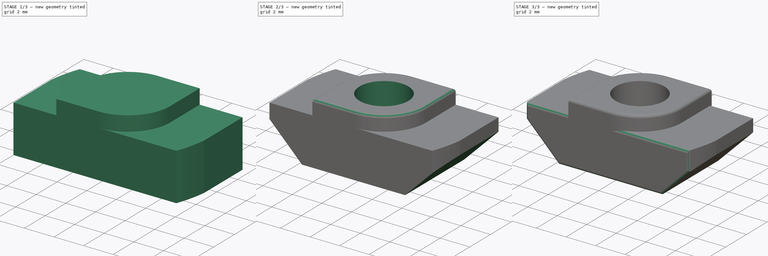
[diagram: build sequence overview — one tinted view per stage of 3, left to right]
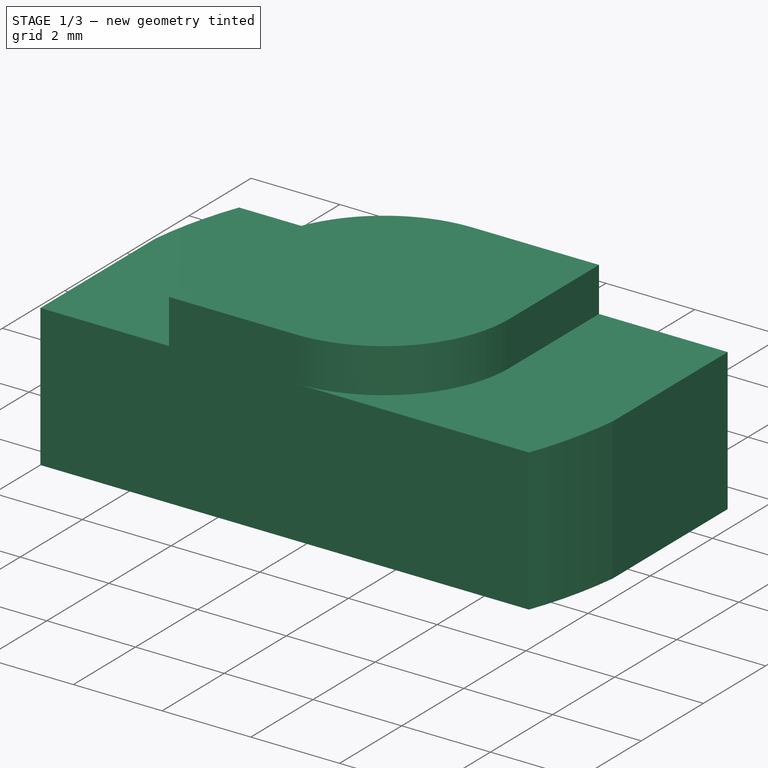
[diagram: stage 1 of 3 — iso view after this stage's code; geometry added in this stage tinted green]
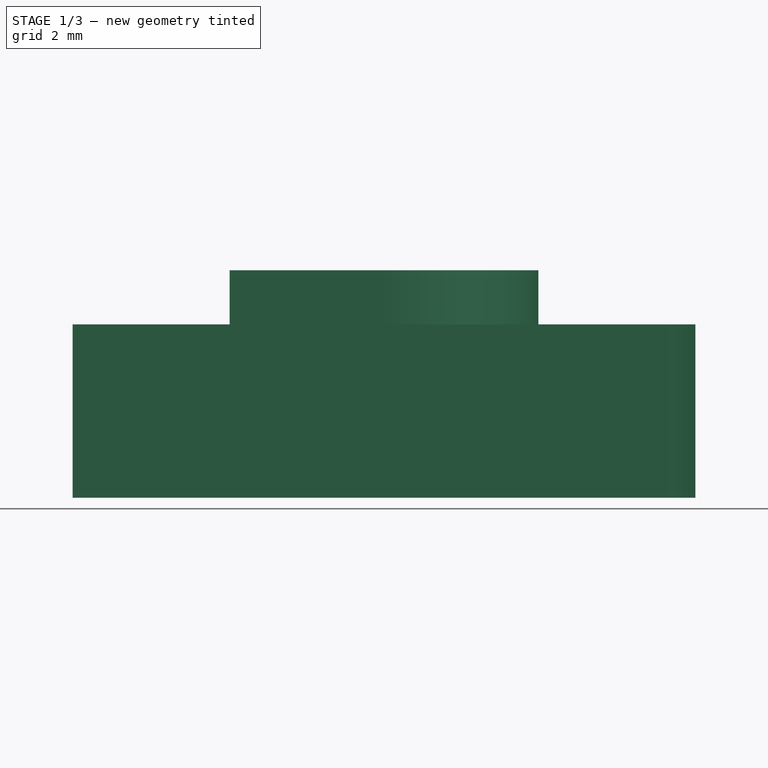
[diagram: stage 1 of 3 — front view after this stage's code; geometry added in this stage tinted green]
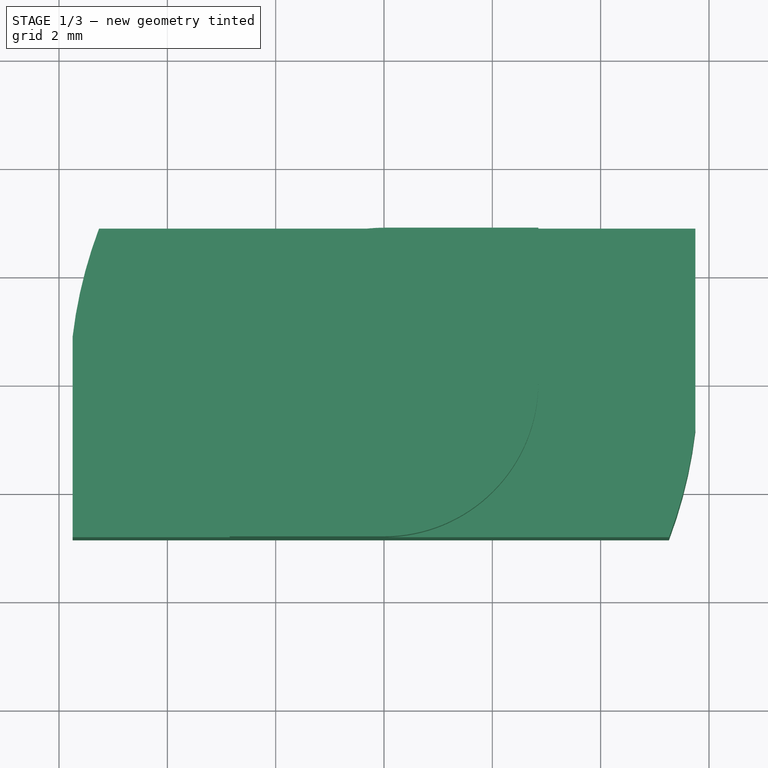
[diagram: stage 1 of 3 — top view after this stage's code; geometry added in this stage tinted green]
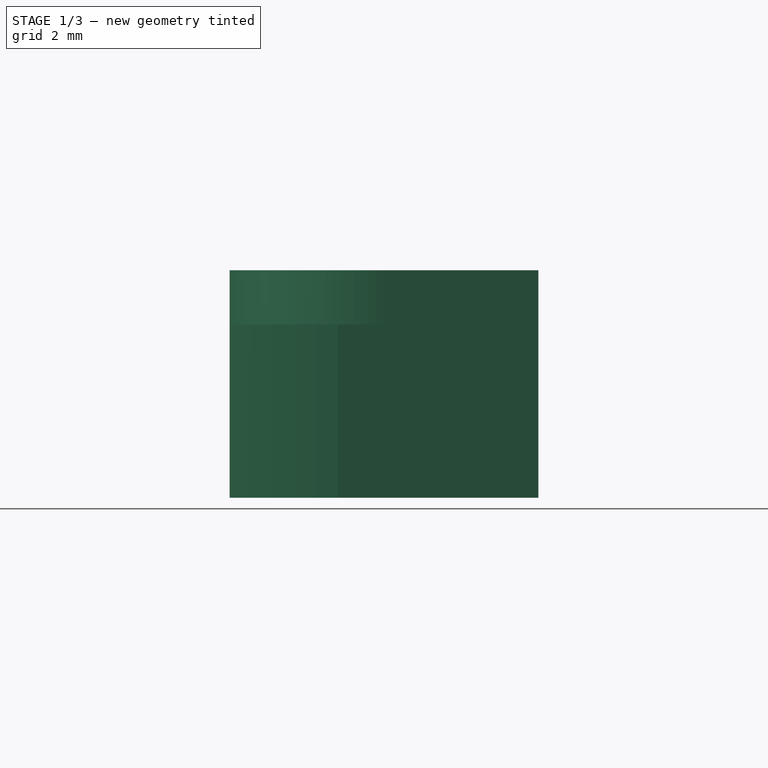
[diagram: stage 1 of 3 — right view after this stage's code; geometry added in this stage tinted green]
FCSTD DOCUMENT  (FreeCAD 0.15R4671 (Git))
Label: Hammermutter B-Typ Nut6 M4
License: All rights reserved
LicenseURL: http://en.wikipedia.org/wiki/All_rights_reserved
objects: Sketcher::SketchObject×4, PartDesign::Fillet×3, PartDesign::Pad×2, PartDesign::Pocket×2
note: 15 computed .brp shape members not serialized (recipe doc carries the construction recipe); baked Part::Feature solids carry a one-line shape summary decoded from their .brp

FEATURE [Sketcher::SketchObject] Sketch
  sketch-geometry (6):
    g0: LineSegment StartX=-5.75 StartY=-2.85 StartZ=0 EndX=5.26202 EndY=-2.85 EndZ=0
    g1: ArcOfCircle CenterX=-2.69097 CenterY=0.15 CenterZ=0 NormalX=0 NormalY=0 NormalZ=1 Radius=8.5 StartAngle=5.92247 EndAngle=6.16527
    g2: LineSegment StartX=5.75 StartY=-0.85 StartZ=0 EndX=5.75 EndY=2.85 EndZ=0
    g3: ArcOfCircle CenterX=2.69097 CenterY=-0.15 CenterZ=0 NormalX=0 NormalY=0 NormalZ=1 Radius=8.5 StartAngle=2.78088 EndAngle=3.02367
    g4: LineSegment StartX=-5.26202 StartY=2.85 StartZ=0 EndX=5.75 EndY=2.85 EndZ=0
    g5: LineSegment StartX=-5.75 StartY=0.85 StartZ=0 EndX=-5.75 EndY=-2.85 EndZ=0
  constraints (20):
    c: Coincident(g0,g1)
    c: Horizontal(g0)
    c: Coincident(g2,g4)
    c: Coincident(g1,g2)
    c: Coincident(g3,g4)
    c: Coincident(g3,g5)
    c: Coincident(g0,g5)
    c: Horizontal(g4)
    c: Vertical(g2)
    c: Vertical(g5)
    c: DistanceY(g3,g0) = -5.7
    c: DistanceX(g0,g2) = 11.5
    c: DistanceY(g3,g3) = 2
    c: DistanceY(g0,g1) = 2
    c: Radius(g3) = 8.5
    c: Radius(g1) = 8.5
    c: Distance(g3,g4) = 3
    c: Distance(g1,g0) = 3
    c: DistanceX(g-2,g0) = -5.75
    c: DistanceY(g-1,g0) = -2.85
FEATURE [PartDesign::Pad] Pad
  Length = 3.2
  Length2 = 100
  Sketch = -> Sketch
  Type = 0
FEATURE [Sketcher::SketchObject] Sketch001
  ExternalGeometry = -> [Pad]
  Placement = pos=(0,0,3.2) rot=(0,0,1;0rad)
  Support = -> Pad [Face8]
  sketch-geometry (7):
    g0: LineSegment StartX=-2.85 StartY=-2.85 StartZ=0 EndX=-2.85 EndY=0 EndZ=0
    g1: ArcOfCircle CenterX=-9e-12 CenterY=0 CenterZ=0 NormalX=0 NormalY=0 NormalZ=1 Radius=2.85 StartAngle=1.5708 EndAngle=3.14159
    g2: LineSegment StartX=-9e-12 StartY=2.85 StartZ=0 EndX=2.85 EndY=2.85 EndZ=0
    g3: LineSegment StartX=2.85 StartY=2.85 StartZ=0 EndX=2.85 EndY=0 EndZ=0
    g4: ArcOfCircle CenterX=0 CenterY=0 CenterZ=0 NormalX=0 NormalY=0 NormalZ=1 Radius=2.85 StartAngle=4.71239 EndAngle=6.28319
    g5: LineSegment StartX=0 StartY=-2.85 StartZ=0 EndX=-2.85 EndY=-2.85 EndZ=0
    g6: LineSegment [constr] StartX=-0.555212 StartY=4.13002 StartZ=0 EndX=1.05626 EndY=-4.06295 EndZ=0
  constraints (18):
    c: Tangent(g0,g1) = 1.5708
    c: Coincident(g2,g3)
    c: Tangent(g3,g4) = 1.5708
    c: Coincident(g4,g5)
    c: Coincident(g5,g0)
    c: Horizontal(g2)
    c: Horizontal(g5)
    c: Vertical(g0)
    c: Vertical(g3)
    c: PointOnObject(g1,g-3)
    c: PointOnObject(g4,g-4)
    c: Coincident(g1,g2)
    c: DistanceX(g0,g2) = 5.7
    c: Angle(g1) = 1.5708
    c: Angle(g4) = 1.5708
    c: DistanceX(g-2,g2) = 2.85
    c: PointOnObject(g0,g-1)
    c: PointOnObject(g3,g-1)
FEATURE [PartDesign::Pad] Pad001
  Length = 1
  Length2 = 100
  Sketch = -> Sketch001
  Type = 0
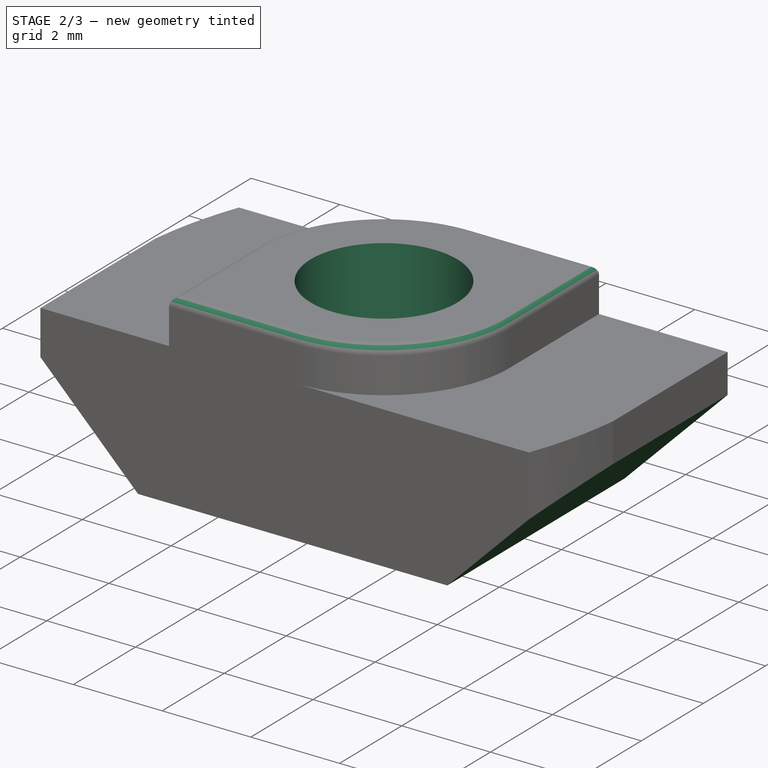
[diagram: stage 2 of 3 — iso view after this stage's code; geometry added in this stage tinted green]
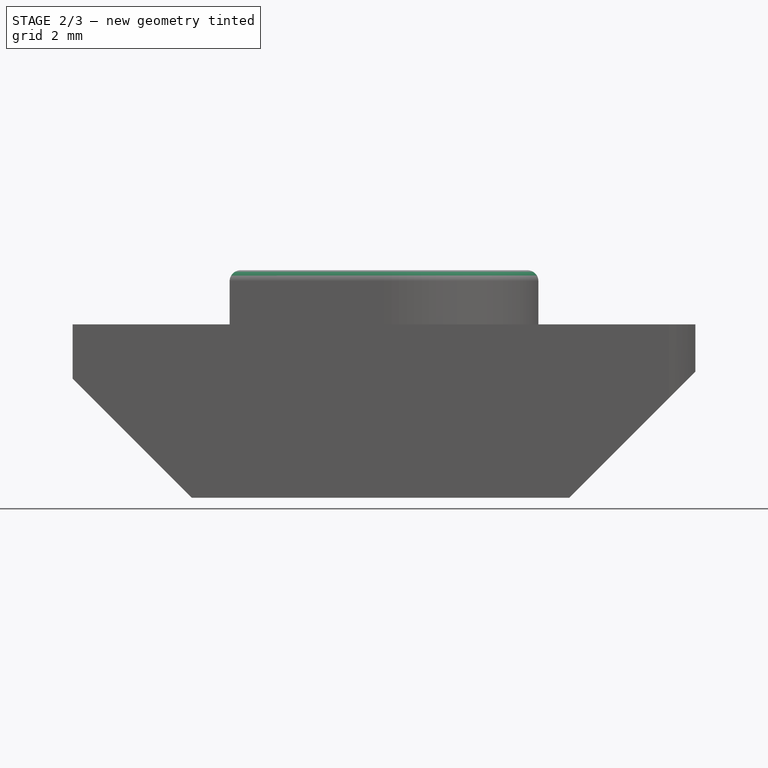
[diagram: stage 2 of 3 — front view after this stage's code; geometry added in this stage tinted green]
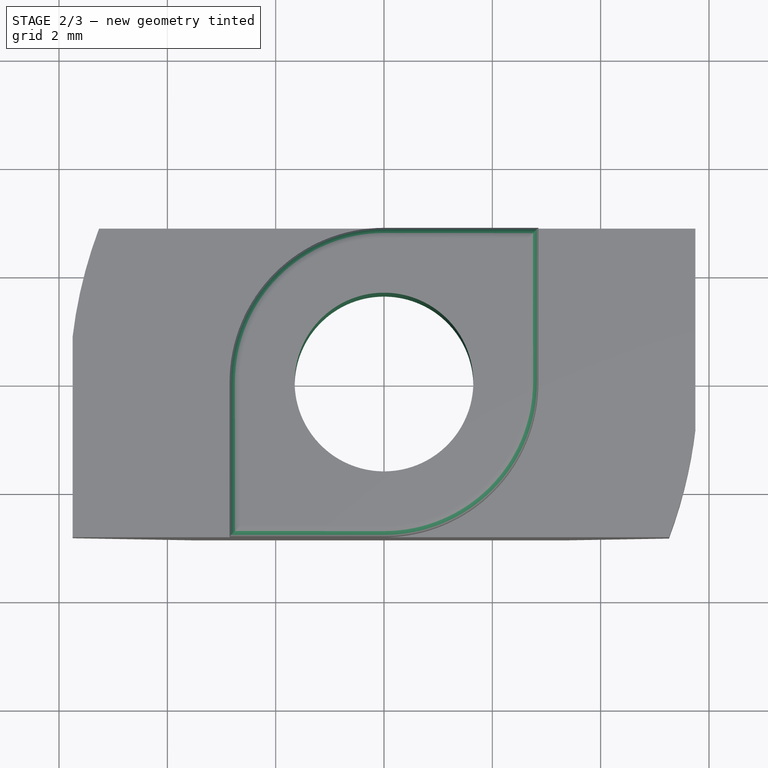
[diagram: stage 2 of 3 — top view after this stage's code; geometry added in this stage tinted green]
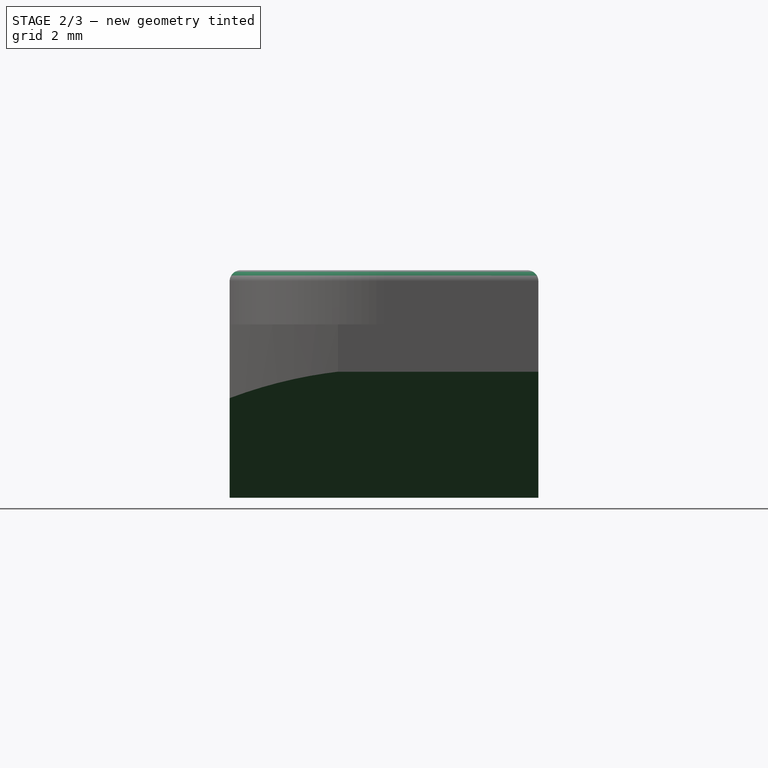
[diagram: stage 2 of 3 — right view after this stage's code; geometry added in this stage tinted green]
FEATURE [Sketcher::SketchObject] Sketch002
  Placement = pos=(0,0,4.2) rot=(0,0,1;0rad)
  Support = -> Pad001 [Face15]
  sketch-geometry (1):
    g0: Circle CenterX=0 CenterY=0 CenterZ=0 NormalX=0 NormalY=0 NormalZ=1 Radius=1.65
  constraints (1):
    c: Radius(g0) = 1.65
FEATURE [PartDesign::Pocket] Pocket
  Length = 5
  Sketch = -> Sketch002
  Type = 0
FEATURE [Sketcher::SketchObject] Sketch003
  ExternalGeometry = -> [Pocket]
  Placement = pos=(0,-2.85,0) rot=(1,0,0;1.5708rad)
  Support = -> Pocket [Face3]
  sketch-geometry (6):
    g0: LineSegment StartX=-5.75 StartY=2.2 StartZ=0 EndX=-3.55 EndY=0 EndZ=0
    g1: LineSegment StartX=-3.55 StartY=0 StartZ=0 EndX=-5.75 EndY=0 EndZ=0
    g2: LineSegment StartX=-5.75 StartY=0 StartZ=0 EndX=-5.75 EndY=2.2 EndZ=0
    g3: LineSegment StartX=3.42285 StartY=0 StartZ=0 EndX=5.75 EndY=0 EndZ=0
    g4: LineSegment StartX=5.75 StartY=0 StartZ=0 EndX=5.75 EndY=2.32715 EndZ=0
    g5: LineSegment StartX=5.75 StartY=2.32715 StartZ=0 EndX=3.42285 EndY=0 EndZ=0
  constraints (16):
    c: Coincident(g0,g1)
    c: Coincident(g1,g2)
    c: Coincident(g2,g0)
    c: Coincident(g3,g4)
    c: Coincident(g4,g5)
    c: Coincident(g5,g3)
    c: Coincident(g1,g-4)
    c: PointOnObject(g0,g-3)
    c: PointOnObject(g0,g-4)
    c: PointOnObject(g3,g-4)
    c: Distance(g-3,g0) = 1
    c: Distance(g4,g-5) = 1
    c: Angle(g-3,g0) = 0.785398
    c: Angle(g5,g-5) = 0.785398
    c: Coincident(g3,g-6)
    c: PointOnObject(g4,g-6)
FEATURE [PartDesign::Pocket] Pocket001
  Length = 5
  Sketch = -> Sketch003
  Type = 1
FEATURE [PartDesign::Fillet] Fillet
  Base = -> Pocket001 [Edge37,Edge40,Edge43,Edge45,Edge47,Edge35]
  Radius = 0.2
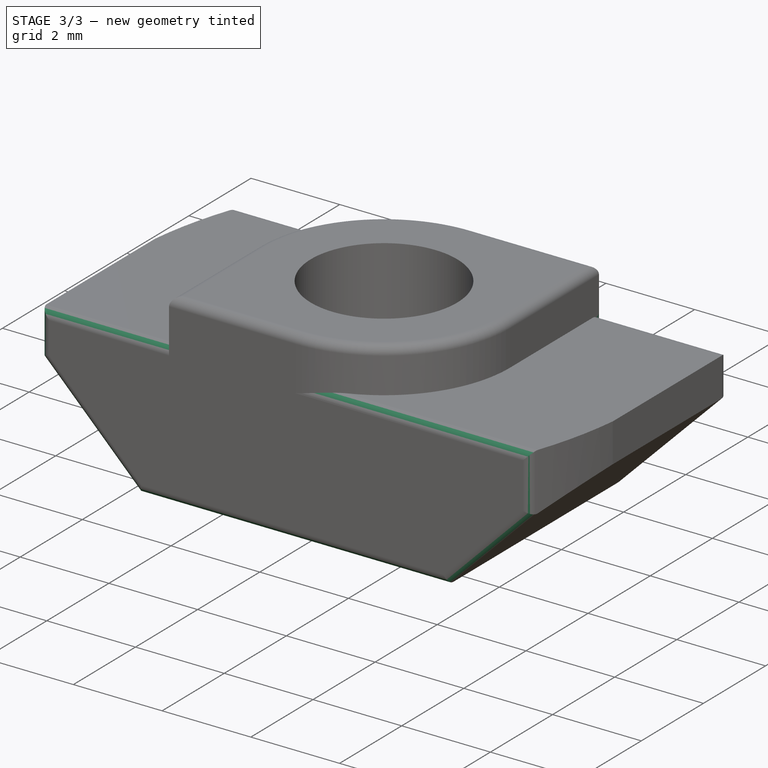
[diagram: stage 3 of 3 — iso view after this stage's code; geometry added in this stage tinted green]
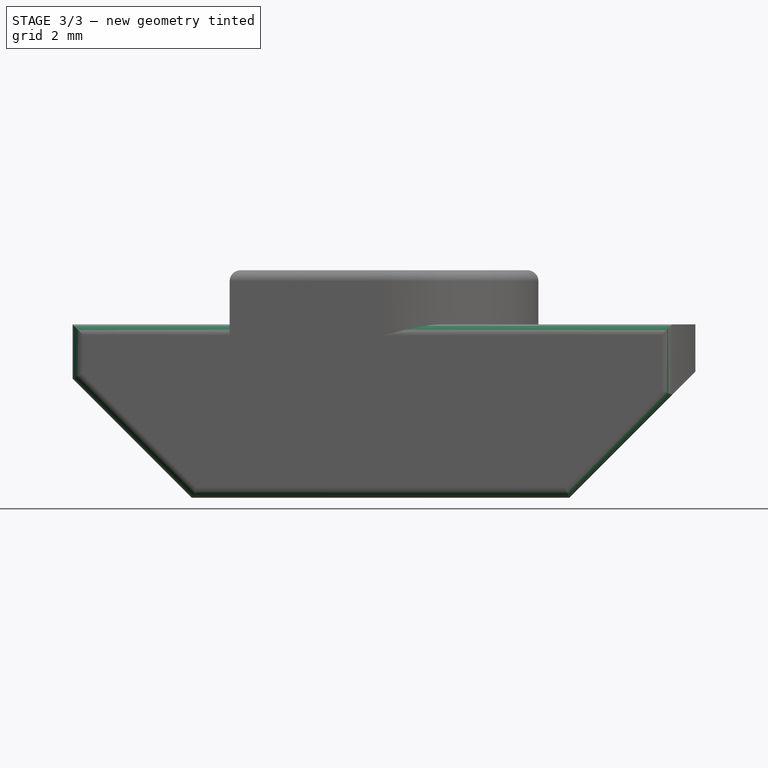
[diagram: stage 3 of 3 — front view after this stage's code; geometry added in this stage tinted green]
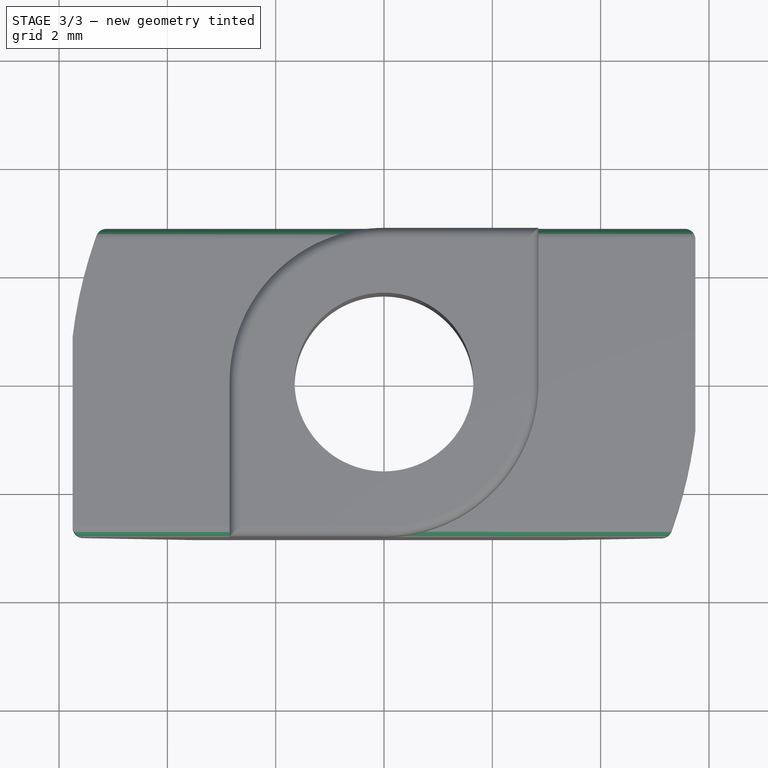
[diagram: stage 3 of 3 — top view after this stage's code; geometry added in this stage tinted green]
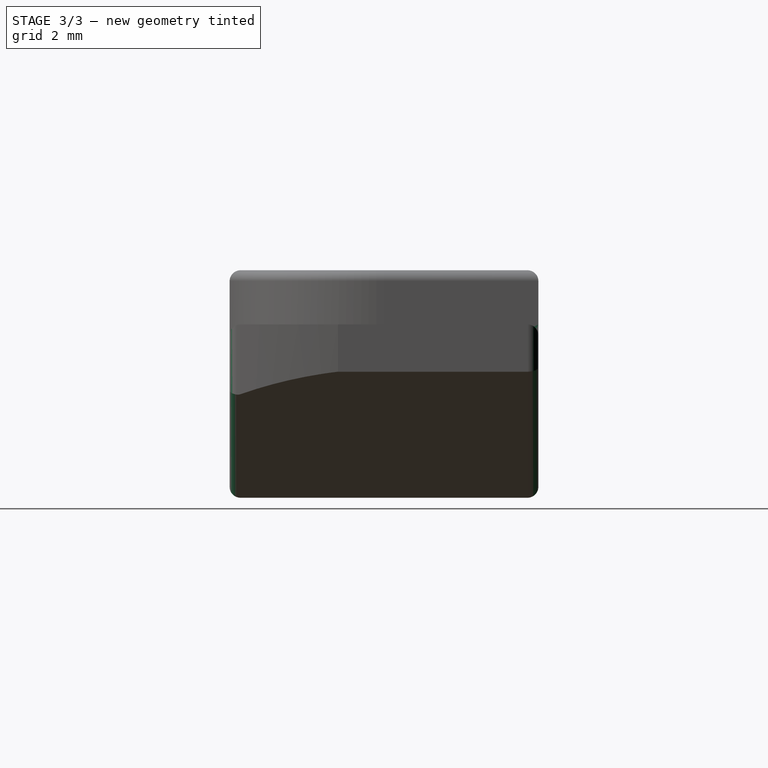
[diagram: stage 3 of 3 — right view after this stage's code; geometry added in this stage tinted green]
FEATURE [PartDesign::Fillet] Fillet001
  Base = -> Fillet [Edge16,Edge11,Edge17,Edge12,Edge13,Edge14,Edge15]
  Radius = 0.2
FEATURE [PartDesign::Fillet] Fillet002
  Base = -> Fillet001 [Edge10,Edge40,Edge41,Edge36,Edge37,Edge38,Edge35]
  Radius = 0.2
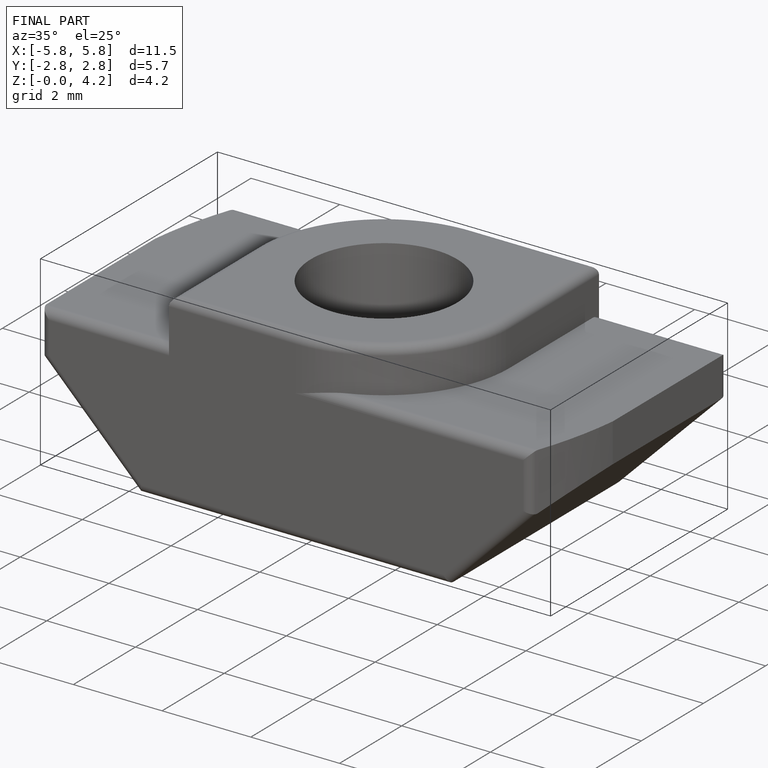
[diagram: finished part — iso view with bounding-box wireframe]
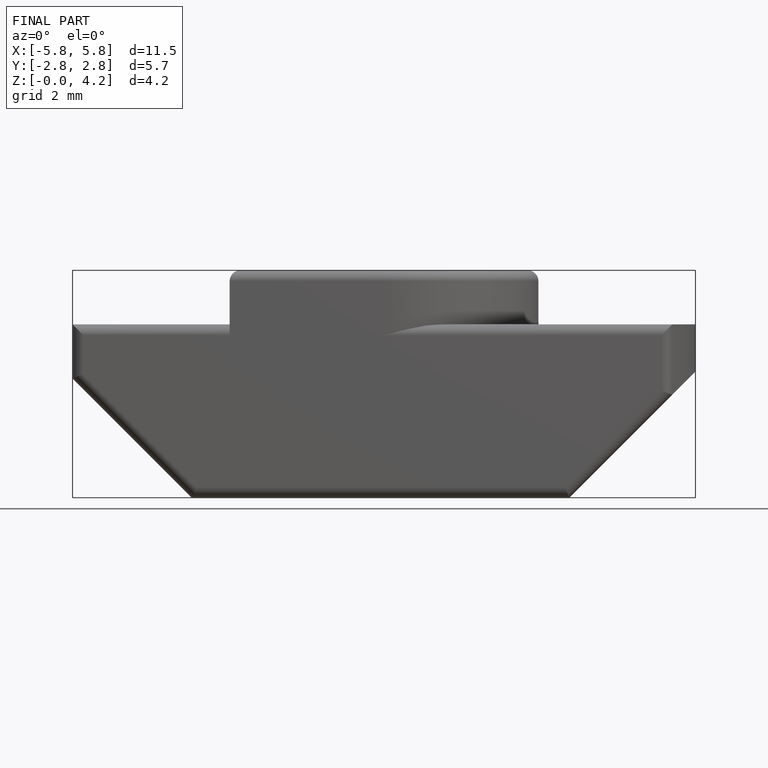
[diagram: finished part — front view with bounding-box wireframe]
